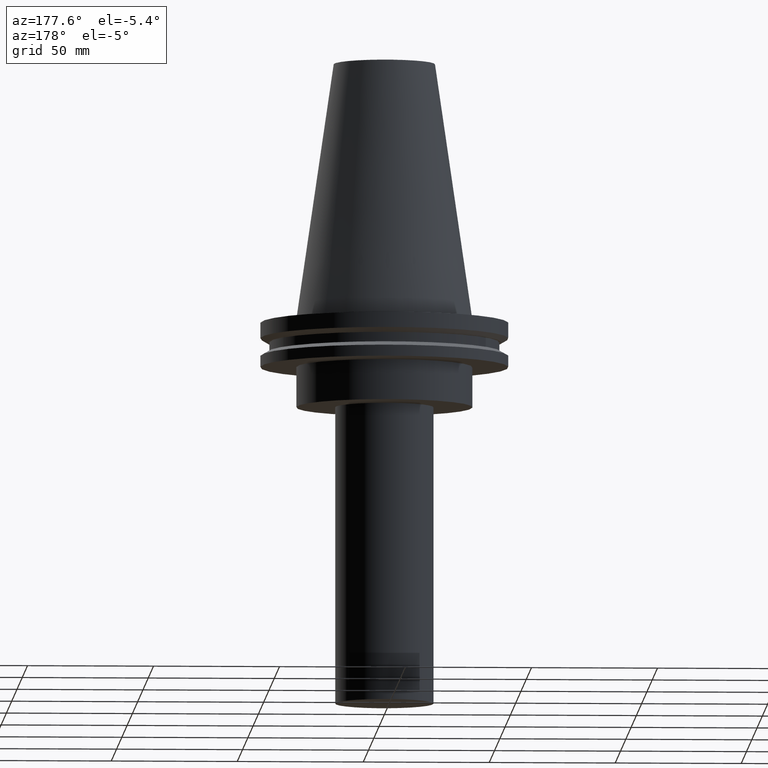
[diagram: clean part render]
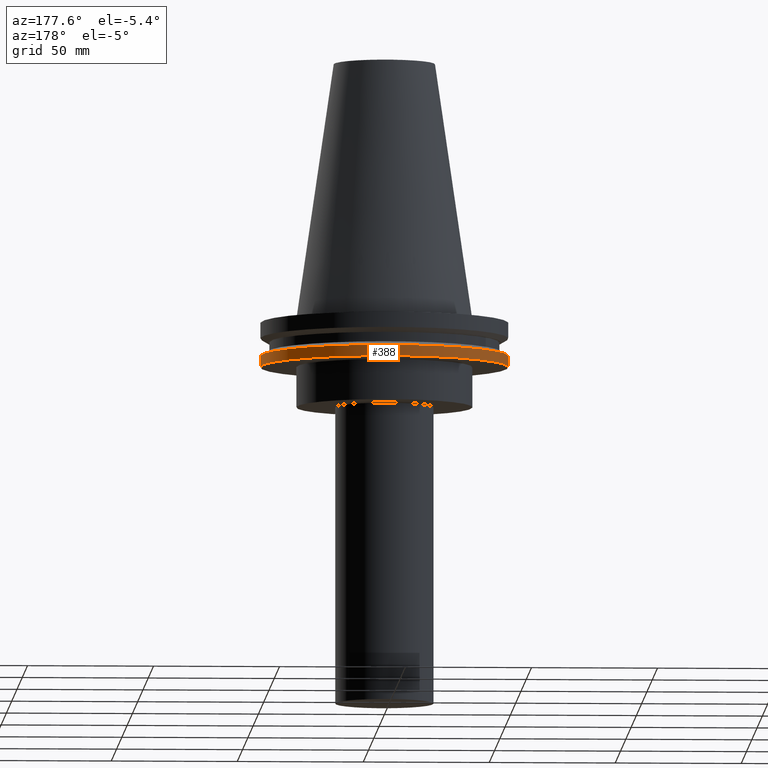
[diagram: same view with one face highlighted and labeled with its STEP entity id]
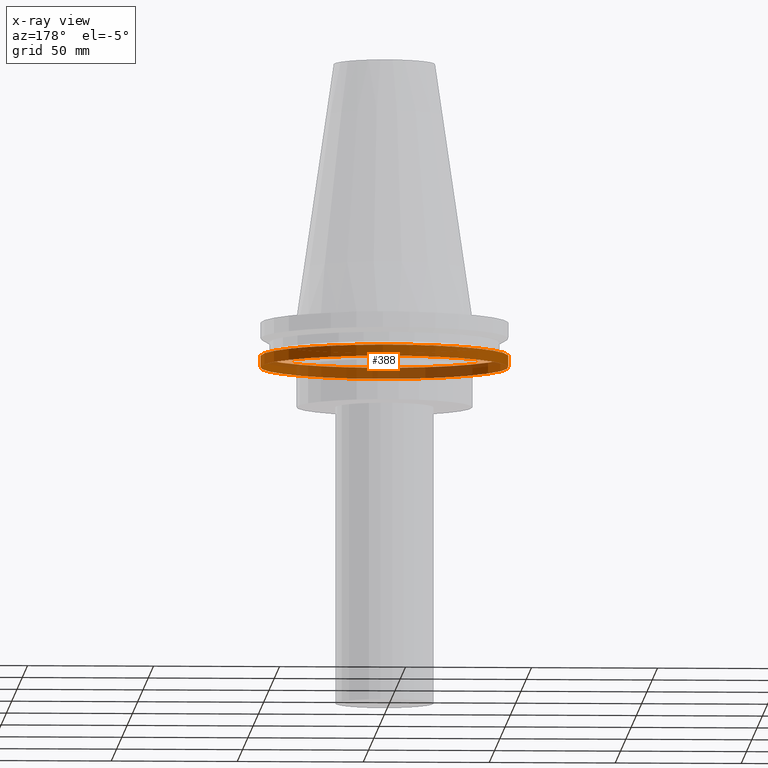
[diagram: x-ray of the same camera — body ghosted, the highlighted face saturated]
A machine part, auxiliary view. The second image highlights one B-rep face of the part: STEP entity #388.
The next image is the same camera in x-ray: the body ghosted, the highlighted face saturated — about 40% of this face is hidden behind the body in this view.
In plain terms, the highlighted cylindrical surface (bore or boss wall) has radius 49.215 mm, axis along (-0, -0, 1).
Its self-contained STEP definition (entity closure, byte-faithful):
#4 = DIRECTION ( 'NONE',  ( -0.000000000000000000, -0.000000000000000000, 1.000000000000000000 ) ) ;
#5 = AXIS2_PLACEMENT_3D ( 'NONE', #230, #258, #315 ) ;
#13 = ORIENTED_EDGE ( 'NONE', *, *, #210, .F. ) ;
#74 = EDGE_CURVE ( 'NONE', #140, #140, #181, .T. ) ;
#85 = ORIENTED_EDGE ( 'NONE', *, *, #74, .T. ) ;
#90 = FACE_OUTER_BOUND ( 'NONE', #269, .T. ) ;
#111 = FACE_OUTER_BOUND ( 'NONE', #275, .T. ) ;
#140 = VERTEX_POINT ( 'NONE', #214 ) ;
#175 = CIRCLE ( 'NONE', #5, 49.21499999999998920 ) ;
#181 = CIRCLE ( 'NONE', #364, 49.21499999999998920 ) ;
#210 = EDGE_CURVE ( 'NONE', #302, #302, #175, .T. ) ;
#214 = CARTESIAN_POINT ( 'NONE',  ( 49.21499999999998920, 0.000000000000000000, -19.04999999999999716 ) ) ;
#230 = CARTESIAN_POINT ( 'NONE',  ( 0.000000000000000000, 0.000000000000000000, -14.65761014474876944 ) ) ;
#247 = DIRECTION ( 'NONE',  ( 1.000000000000000000, 0.000000000000000000, 0.000000000000000000 ) ) ;
#255 = CARTESIAN_POINT ( 'NONE',  ( 0.000000000000000000, 0.000000000000000000, -19.04999999999999716 ) ) ;
#258 = DIRECTION ( 'NONE',  ( -0.000000000000000000, -0.000000000000000000, 1.000000000000000000 ) ) ;
#269 = EDGE_LOOP ( 'NONE', ( #85 ) ) ;
#271 = DIRECTION ( 'NONE',  ( 1.000000000000000000, 0.000000000000000000, 0.000000000000000000 ) ) ;
#275 = EDGE_LOOP ( 'NONE', ( #13 ) ) ;
#297 = CARTESIAN_POINT ( 'NONE',  ( 49.21499999999998920, 0.000000000000000000, -14.65761014474876944 ) ) ;
#300 = CYLINDRICAL_SURFACE ( 'NONE', #339, 49.21499999999998920 ) ;
#302 = VERTEX_POINT ( 'NONE', #297 ) ;
#315 = DIRECTION ( 'NONE',  ( 1.000000000000000000, 0.000000000000000000, 0.000000000000000000 ) ) ;
#328 = DIRECTION ( 'NONE',  ( -0.000000000000000000, -0.000000000000000000, 1.000000000000000000 ) ) ;
#333 = CARTESIAN_POINT ( 'NONE',  ( 0.000000000000000000, 0.000000000000000000, 101.5999999999999943 ) ) ;
#339 = AXIS2_PLACEMENT_3D ( 'NONE', #333, #328, #271 ) ;
#364 = AXIS2_PLACEMENT_3D ( 'NONE', #255, #4, #247 ) ;
#388 = ADVANCED_FACE ( 'NONE', ( #111, #90 ), #300, .T. ) ;